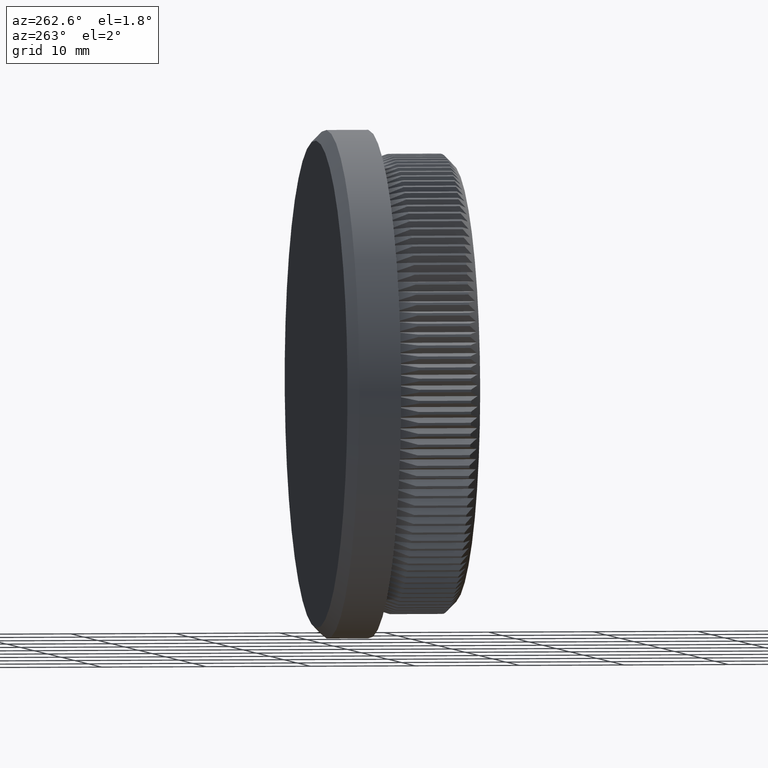
[diagram: clean part render]
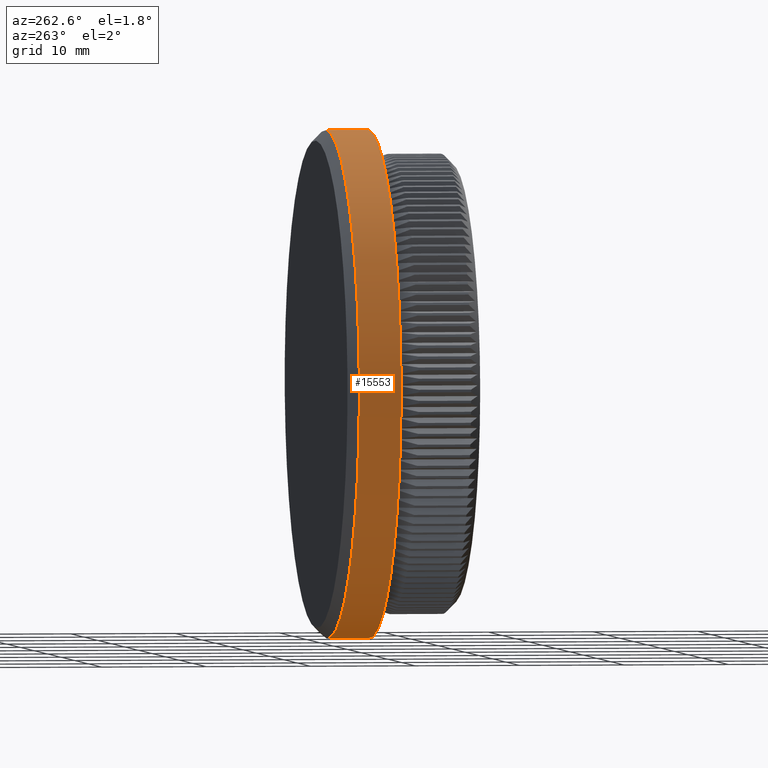
[diagram: same view with one face highlighted and labeled with its STEP entity id]
A machine part, auxiliary view. The second image highlights one B-rep face of the part: STEP entity #15553.
In plain terms, the highlighted cylindrical surface (partial cylindrical patch) has radius 24.15 mm, axis along (-0, -1, -0).
Its self-contained STEP definition (entity closure, byte-faithful):
#542 = VERTEX_POINT ( 'NONE', #30136 ) ;
#1532 = EDGE_CURVE ( 'NONE', #7289, #9434, #13232, .T. ) ;
#2483 = CARTESIAN_POINT ( 'NONE',  ( 0.0000000000000000000, 0.0000000000000000000, -24.14999999999999900 ) ) ;
#2580 = DIRECTION ( 'NONE',  ( -0.0000000000000000000, -1.000000000000000000, -0.0000000000000000000 ) ) ;
#2993 = EDGE_CURVE ( 'NONE', #542, #8042, #13527, .T. ) ;
#4826 = ORIENTED_EDGE ( 'NONE', *, *, #15168, .F. ) ;
#5624 = VECTOR ( 'NONE', #2580, 1000.000000000000000 ) ;
#6531 = FACE_OUTER_BOUND ( 'NONE', #7563, .T. ) ;
#7289 = VERTEX_POINT ( 'NONE', #9903 ) ;
#7563 = EDGE_LOOP ( 'NONE', ( #26811, #13310, #12397, #4826 ) ) ;
#8042 = VERTEX_POINT ( 'NONE', #8154 ) ;
#8154 = CARTESIAN_POINT ( 'NONE',  ( 2.957522019940857900E-015, 8.000000000000000000, 24.14999999999999900 ) ) ;
#9159 = DIRECTION ( 'NONE',  ( 0.0000000000000000000, 0.0000000000000000000, -1.000000000000000000 ) ) ;
#9434 = VERTEX_POINT ( 'NONE', #22372 ) ;
#9903 = CARTESIAN_POINT ( 'NONE',  ( 0.0000000000000000000, 11.99999999999999500, -24.14999999999999900 ) ) ;
#10951 = DIRECTION ( 'NONE',  ( -0.0000000000000000000, -1.000000000000000000, -0.0000000000000000000 ) ) ;
#11171 = DIRECTION ( 'NONE',  ( -0.0000000000000000000, -1.000000000000000000, -0.0000000000000000000 ) ) ;
#11833 = CARTESIAN_POINT ( 'NONE',  ( 0.0000000000000000000, 8.000000000000000000, 0.0000000000000000000 ) ) ;
#12397 = ORIENTED_EDGE ( 'NONE', *, *, #1532, .T. ) ;
#13232 = LINE ( 'NONE', #2483, #5624 ) ;
#13310 = ORIENTED_EDGE ( 'NONE', *, *, #28599, .T. ) ;
#13527 = LINE ( 'NONE', #24565, #26663 ) ;
#15168 = EDGE_CURVE ( 'NONE', #8042, #9434, #17779, .T. ) ;
#15553 = ADVANCED_FACE ( 'NONE', ( #6531 ), #21823, .T. ) ;
#16066 = DIRECTION ( 'NONE',  ( 0.0000000000000000000, 0.0000000000000000000, -1.000000000000000000 ) ) ;
#17779 = CIRCLE ( 'NONE', #20460, 24.14999999999999900 ) ;
#17820 = CARTESIAN_POINT ( 'NONE',  ( 0.0000000000000000000, 11.99999999999999500, 0.0000000000000000000 ) ) ;
#18026 = DIRECTION ( 'NONE',  ( -0.0000000000000000000, -1.000000000000000000, -0.0000000000000000000 ) ) ;
#18730 = AXIS2_PLACEMENT_3D ( 'NONE', #22664, #11171, #9159 ) ;
#20144 = DIRECTION ( 'NONE',  ( 0.0000000000000000000, 0.0000000000000000000, 1.000000000000000000 ) ) ;
#20460 = AXIS2_PLACEMENT_3D ( 'NONE', #11833, #20749, #16066 ) ;
#20749 = DIRECTION ( 'NONE',  ( -0.0000000000000000000, -1.000000000000000000, -0.0000000000000000000 ) ) ;
#21823 = CYLINDRICAL_SURFACE ( 'NONE', #18730, 24.14999999999999900 ) ;
#22372 = CARTESIAN_POINT ( 'NONE',  ( 0.0000000000000000000, 8.000000000000000000, -24.14999999999999900 ) ) ;
#22664 = CARTESIAN_POINT ( 'NONE',  ( 0.0000000000000000000, 0.0000000000000000000, 0.0000000000000000000 ) ) ;
#24377 = AXIS2_PLACEMENT_3D ( 'NONE', #17820, #18026, #20144 ) ;
#24565 = CARTESIAN_POINT ( 'NONE',  ( 2.957522019940857900E-015, 0.0000000000000000000, 24.14999999999999900 ) ) ;
#25094 = CIRCLE ( 'NONE', #24377, 24.14999999999999900 ) ;
#26663 = VECTOR ( 'NONE', #10951, 1000.000000000000000 ) ;
#26811 = ORIENTED_EDGE ( 'NONE', *, *, #2993, .F. ) ;
#28599 = EDGE_CURVE ( 'NONE', #542, #7289, #25094, .T. ) ;
#30136 = CARTESIAN_POINT ( 'NONE',  ( 2.957522019940857900E-015, 11.99999999999999500, 24.14999999999999900 ) ) ;